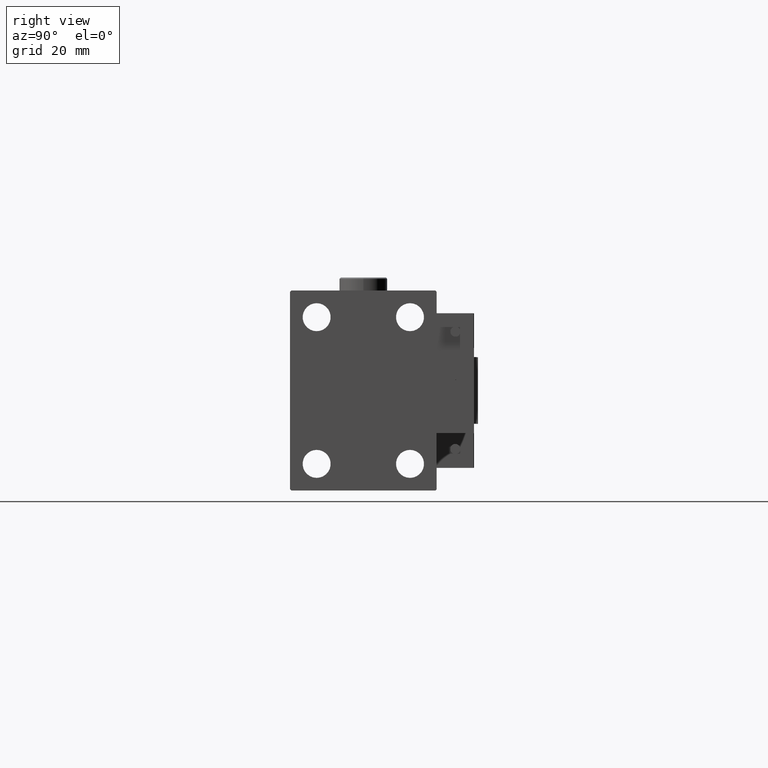
[diagram: clean part render]
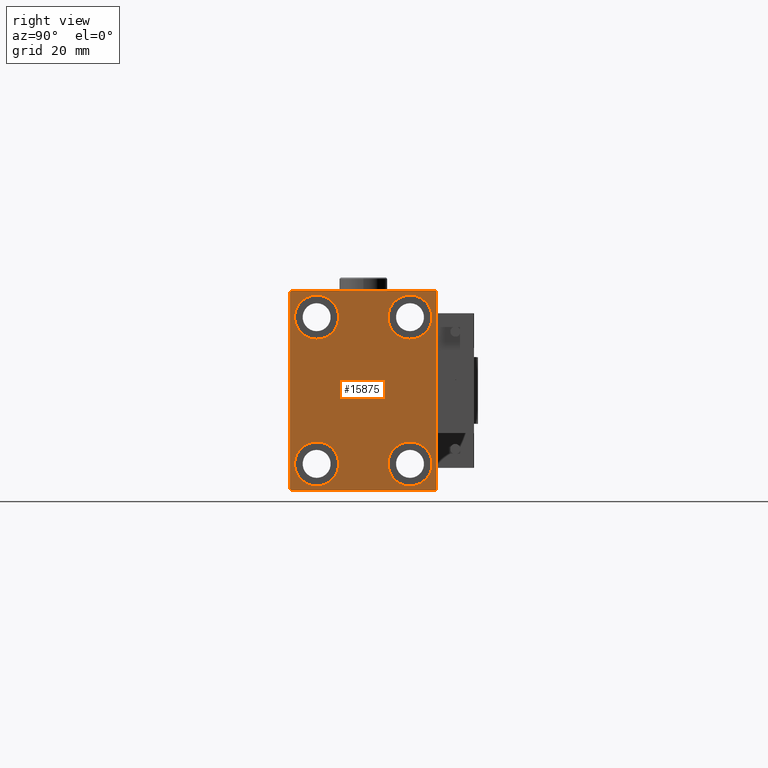
[diagram: same view with one face highlighted and labeled with its STEP entity id]
A machine part, right view. The second image highlights one B-rep face of the part: STEP entity #15875.
In plain terms, the highlighted planar face has unit normal (1, 0, 0).
Its self-contained STEP definition (entity closure, byte-faithful):
#63 = LINE ( 'NONE', #19111, #14748 ) ;
#866 = VERTEX_POINT ( 'NONE', #51205 ) ;
#1067 = LINE ( 'NONE', #8891, #31613 ) ;
#1582 = CARTESIAN_POINT ( 'NONE',  ( 175.0000000000000000, 27.49999999999999645, 37.00000000000001421 ) ) ;
#1773 = AXIS2_PLACEMENT_3D ( 'NONE', #26254, #6455, #42157 ) ;
#2330 = ORIENTED_EDGE ( 'NONE', *, *, #20909, .T. ) ;
#2524 = LINE ( 'NONE', #50745, #46623 ) ;
#2953 = VECTOR ( 'NONE', #50575, 1000.000000000000114 ) ;
#3126 = CARTESIAN_POINT ( 'NONE',  ( 175.0000000000000000, 17.49999999999999645, -19.25000000000000355 ) ) ;
#3712 = VERTEX_POINT ( 'NONE', #29356 ) ;
#4596 = EDGE_LOOP ( 'NONE', ( #49215, #36755, #50250, #50752, #22055, #10293, #45800, #13690 ) ) ;
#5052 = CARTESIAN_POINT ( 'NONE',  ( 175.0000000000000000, 17.49999999999999645, -35.75000000000000711 ) ) ;
#5454 = DIRECTION ( 'NONE',  ( 0.000000000000000000, 0.000000000000000000, 1.000000000000000000 ) ) ;
#5770 = LINE ( 'NONE', #9939, #24987 ) ;
#5958 = DIRECTION ( 'NONE',  ( -1.000000000000000000, -0.000000000000000000, -0.000000000000000000 ) ) ;
#6219 = FACE_OUTER_BOUND ( 'NONE', #4596, .T. ) ;
#6230 = CARTESIAN_POINT ( 'NONE',  ( 175.0000000000000000, -17.49999999999999645, 27.49999999999999645 ) ) ;
#6433 = AXIS2_PLACEMENT_3D ( 'NONE', #6230, #22109, #5454 ) ;
#6455 = DIRECTION ( 'NONE',  ( -1.000000000000000000, -0.000000000000000000, -0.000000000000000000 ) ) ;
#6990 = EDGE_CURVE ( 'NONE', #38626, #44199, #16474, .T. ) ;
#6992 = CARTESIAN_POINT ( 'NONE',  ( 175.0000000000000000, 27.00000000000003197, -37.50000000000000000 ) ) ;
#7735 = EDGE_CURVE ( 'NONE', #3712, #46972, #63, .T. ) ;
#8891 = CARTESIAN_POINT ( 'NONE',  ( 175.0000000000000000, -32.25000000000000000, 32.25000000000000000 ) ) ;
#9305 = EDGE_CURVE ( 'NONE', #866, #50211, #21383, .T. ) ;
#9608 = CARTESIAN_POINT ( 'NONE',  ( 175.0000000000000000, -17.50000000000000355, -27.50000000000000355 ) ) ;
#9939 = CARTESIAN_POINT ( 'NONE',  ( 175.0000000000000000, 27.49999999999999645, 37.50000000000000711 ) ) ;
#10293 = ORIENTED_EDGE ( 'NONE', *, *, #50711, .T. ) ;
#10589 = DIRECTION ( 'NONE',  ( -1.000000000000000000, -0.000000000000000000, -0.000000000000000000 ) ) ;
#11390 = EDGE_CURVE ( 'NONE', #15247, #36127, #49778, .T. ) ;
#12240 = VERTEX_POINT ( 'NONE', #38521 ) ;
#12964 = VECTOR ( 'NONE', #46940, 1000.000000000000000 ) ;
#13301 = DIRECTION ( 'NONE',  ( -1.000000000000000000, -0.000000000000000000, -0.000000000000000000 ) ) ;
#13464 = CARTESIAN_POINT ( 'NONE',  ( 175.0000000000000000, 17.50000000000000355, 27.49999999999999645 ) ) ;
#13690 = ORIENTED_EDGE ( 'NONE', *, *, #50806, .T. ) ;
#14226 = VECTOR ( 'NONE', #37960, 1000.000000000000000 ) ;
#14281 = VERTEX_POINT ( 'NONE', #6992 ) ;
#14748 = VECTOR ( 'NONE', #50638, 1000.000000000000000 ) ;
#15022 = EDGE_CURVE ( 'NONE', #45225, #38626, #2524, .T. ) ;
#15247 = VERTEX_POINT ( 'NONE', #5052 ) ;
#15684 = ORIENTED_EDGE ( 'NONE', *, *, #47698, .T. ) ;
#15875 = ADVANCED_FACE ( 'NONE', ( #42175, #30182, #38523, #49742, #6219 ), #29921, .T. ) ;
#16015 = CIRCLE ( 'NONE', #40030, 8.249999999999992895 ) ;
#16140 = ORIENTED_EDGE ( 'NONE', *, *, #25606, .T. ) ;
#16234 = CARTESIAN_POINT ( 'NONE',  ( 175.0000000000000000, -17.50000000000000355, -27.50000000000000355 ) ) ;
#16388 = EDGE_CURVE ( 'NONE', #35202, #17482, #5770, .T. ) ;
#16474 = LINE ( 'NONE', #44097, #28142 ) ;
#16717 = ORIENTED_EDGE ( 'NONE', *, *, #9305, .T. ) ;
#17482 = VERTEX_POINT ( 'NONE', #45838 ) ;
#17484 = DIRECTION ( 'NONE',  ( 0.000000000000000000, -0.7071067811865474617, -0.7071067811865474617 ) ) ;
#17635 = DIRECTION ( 'NONE',  ( 0.000000000000000000, 0.000000000000000000, 1.000000000000000000 ) ) ;
#17957 = CARTESIAN_POINT ( 'NONE',  ( 175.0000000000000000, 0.000000000000000000, 0.000000000000000000 ) ) ;
#18008 = CARTESIAN_POINT ( 'NONE',  ( 175.0000000000000000, 32.25000000000001421, -32.25000000000001421 ) ) ;
#18528 = LINE ( 'NONE', #18008, #2953 ) ;
#18977 = EDGE_CURVE ( 'NONE', #50211, #866, #35900, .T. ) ;
#19111 = CARTESIAN_POINT ( 'NONE',  ( 175.0000000000000000, 27.50000000000000355, -37.50000000000000000 ) ) ;
#19720 = EDGE_LOOP ( 'NONE', ( #44226, #15684 ) ) ;
#20088 = EDGE_CURVE ( 'NONE', #24009, #28759, #21793, .T. ) ;
#20196 = CARTESIAN_POINT ( 'NONE',  ( 175.0000000000000000, 17.50000000000000355, 27.49999999999999645 ) ) ;
#20570 = ORIENTED_EDGE ( 'NONE', *, *, #33496, .T. ) ;
#20620 = ORIENTED_EDGE ( 'NONE', *, *, #18977, .T. ) ;
#20909 = EDGE_CURVE ( 'NONE', #48340, #12240, #16015, .T. ) ;
#21383 = CIRCLE ( 'NONE', #6433, 8.249999999999992895 ) ;
#21793 = CIRCLE ( 'NONE', #34249, 8.250000000000000000 ) ;
#22055 = ORIENTED_EDGE ( 'NONE', *, *, #36499, .T. ) ;
#22061 = CARTESIAN_POINT ( 'NONE',  ( 175.0000000000000000, -27.50000000000000355, -37.50000000000000000 ) ) ;
#22109 = DIRECTION ( 'NONE',  ( -1.000000000000000000, -0.000000000000000000, -0.000000000000000000 ) ) ;
#22877 = DIRECTION ( 'NONE',  ( 0.000000000000000000, 0.000000000000000000, -1.000000000000000000 ) ) ;
#23058 = EDGE_LOOP ( 'NONE', ( #16140, #2330 ) ) ;
#24009 = VERTEX_POINT ( 'NONE', #36560 ) ;
#24350 = DIRECTION ( 'NONE',  ( -1.000000000000000000, -0.000000000000000000, -0.000000000000000000 ) ) ;
#24531 = DIRECTION ( 'NONE',  ( -0.000000000000000000, 0.7071067811865672237, -0.7071067811865279218 ) ) ;
#24987 = VECTOR ( 'NONE', #25573, 1000.000000000000000 ) ;
#25573 = DIRECTION ( 'NONE',  ( 0.000000000000000000, -1.000000000000000000, -1.261617073437677999E-16 ) ) ;
#25606 = EDGE_CURVE ( 'NONE', #12240, #48340, #31978, .T. ) ;
#25818 = DIRECTION ( 'NONE',  ( -1.000000000000000000, -0.000000000000000000, -0.000000000000000000 ) ) ;
#25973 = DIRECTION ( 'NONE',  ( 0.000000000000000000, 0.000000000000000000, 1.000000000000000000 ) ) ;
#26254 = CARTESIAN_POINT ( 'NONE',  ( 175.0000000000000000, -17.49999999999999645, 27.49999999999999645 ) ) ;
#26276 = DIRECTION ( 'NONE',  ( 1.000000000000000000, 0.000000000000000000, 0.000000000000000000 ) ) ;
#26340 = CARTESIAN_POINT ( 'NONE',  ( 175.0000000000000000, -27.50000000000000355, -37.00000000000000000 ) ) ;
#27105 = CIRCLE ( 'NONE', #34575, 8.250000000000000000 ) ;
#27287 = LINE ( 'NONE', #22061, #14226 ) ;
#27327 = AXIS2_PLACEMENT_3D ( 'NONE', #30131, #10589, #25973 ) ;
#28142 = VECTOR ( 'NONE', #24531, 1000.000000000000000 ) ;
#28759 = VERTEX_POINT ( 'NONE', #40279 ) ;
#28960 = DIRECTION ( 'NONE',  ( 0.000000000000000000, 0.000000000000000000, 1.000000000000000000 ) ) ;
#29356 = CARTESIAN_POINT ( 'NONE',  ( 175.0000000000000000, 27.50000000000000355, -37.00000000000002842 ) ) ;
#29701 = DIRECTION ( 'NONE',  ( 0.000000000000000000, 0.000000000000000000, 1.000000000000000000 ) ) ;
#29921 = PLANE ( 'NONE',  #49104 ) ;
#29950 = CARTESIAN_POINT ( 'NONE',  ( 175.0000000000000000, 17.49999999999999645, -27.50000000000000355 ) ) ;
#30131 = CARTESIAN_POINT ( 'NONE',  ( 175.0000000000000000, 17.49999999999999645, -27.50000000000000355 ) ) ;
#30182 = FACE_BOUND ( 'NONE', #49357, .T. ) ;
#30919 = EDGE_CURVE ( 'NONE', #17482, #45225, #1067, .T. ) ;
#31191 = DIRECTION ( 'NONE',  ( 0.000000000000000000, 0.000000000000000000, -1.000000000000000000 ) ) ;
#31613 = VECTOR ( 'NONE', #17484, 1000.000000000000114 ) ;
#31978 = CIRCLE ( 'NONE', #51138, 8.249999999999992895 ) ;
#32523 = CARTESIAN_POINT ( 'NONE',  ( 175.0000000000000000, -26.99999999999997513, -37.50000000000000000 ) ) ;
#33496 = EDGE_CURVE ( 'NONE', #36127, #15247, #38354, .T. ) ;
#33588 = DIRECTION ( 'NONE',  ( 0.000000000000000000, 0.000000000000000000, 1.000000000000000000 ) ) ;
#34249 = AXIS2_PLACEMENT_3D ( 'NONE', #9608, #5958, #33588 ) ;
#34575 = AXIS2_PLACEMENT_3D ( 'NONE', #16234, #25818, #28960 ) ;
#35202 = VERTEX_POINT ( 'NONE', #43493 ) ;
#35900 = CIRCLE ( 'NONE', #1773, 8.249999999999992895 ) ;
#36127 = VERTEX_POINT ( 'NONE', #3126 ) ;
#36333 = DIRECTION ( 'NONE',  ( 0.000000000000000000, 0.000000000000000000, 1.000000000000000000 ) ) ;
#36499 = EDGE_CURVE ( 'NONE', #44199, #14281, #27287, .T. ) ;
#36560 = CARTESIAN_POINT ( 'NONE',  ( 175.0000000000000000, -17.50000000000000355, -35.75000000000000711 ) ) ;
#36755 = ORIENTED_EDGE ( 'NONE', *, *, #30919, .T. ) ;
#37960 = DIRECTION ( 'NONE',  ( 0.000000000000000000, 1.000000000000000000, 0.000000000000000000 ) ) ;
#38181 = DIRECTION ( 'NONE',  ( -1.000000000000000000, -0.000000000000000000, -0.000000000000000000 ) ) ;
#38354 = CIRCLE ( 'NONE', #41712, 8.250000000000000000 ) ;
#38521 = CARTESIAN_POINT ( 'NONE',  ( 175.0000000000000000, 17.50000000000000355, 19.25000000000000000 ) ) ;
#38523 = FACE_BOUND ( 'NONE', #23058, .T. ) ;
#38626 = VERTEX_POINT ( 'NONE', #26340 ) ;
#40030 = AXIS2_PLACEMENT_3D ( 'NONE', #13464, #38181, #17635 ) ;
#40257 = CARTESIAN_POINT ( 'NONE',  ( 175.0000000000000000, -17.49999999999999645, 19.25000000000000000 ) ) ;
#40279 = CARTESIAN_POINT ( 'NONE',  ( 175.0000000000000000, -17.50000000000000355, -19.25000000000000355 ) ) ;
#41712 = AXIS2_PLACEMENT_3D ( 'NONE', #29950, #13301, #29701 ) ;
#42157 = DIRECTION ( 'NONE',  ( 0.000000000000000000, 0.000000000000000000, 1.000000000000000000 ) ) ;
#42175 = FACE_BOUND ( 'NONE', #44919, .T. ) ;
#42303 = CARTESIAN_POINT ( 'NONE',  ( 175.0000000000000000, 17.50000000000000355, 35.74999999999999289 ) ) ;
#42387 = CARTESIAN_POINT ( 'NONE',  ( 175.0000000000000000, -27.50000000000000355, 37.00000000000000000 ) ) ;
#43022 = LINE ( 'NONE', #47449, #12964 ) ;
#43153 = ORIENTED_EDGE ( 'NONE', *, *, #11390, .T. ) ;
#43493 = CARTESIAN_POINT ( 'NONE',  ( 175.0000000000000000, 26.99999999999999645, 37.50000000000000711 ) ) ;
#44097 = CARTESIAN_POINT ( 'NONE',  ( 175.0000000000000000, -32.24999999999923972, -32.25000000000103029 ) ) ;
#44199 = VERTEX_POINT ( 'NONE', #32523 ) ;
#44226 = ORIENTED_EDGE ( 'NONE', *, *, #20088, .T. ) ;
#44919 = EDGE_LOOP ( 'NONE', ( #43153, #20570 ) ) ;
#45225 = VERTEX_POINT ( 'NONE', #42387 ) ;
#45800 = ORIENTED_EDGE ( 'NONE', *, *, #7735, .T. ) ;
#45838 = CARTESIAN_POINT ( 'NONE',  ( 175.0000000000000000, -27.00000000000000355, 37.50000000000000000 ) ) ;
#46623 = VECTOR ( 'NONE', #31191, 1000.000000000000000 ) ;
#46940 = DIRECTION ( 'NONE',  ( -0.000000000000000000, -0.7071067811865524577, 0.7071067811865426878 ) ) ;
#46972 = VERTEX_POINT ( 'NONE', #1582 ) ;
#47449 = CARTESIAN_POINT ( 'NONE',  ( 175.0000000000000000, 32.24999999999981526, 32.25000000000025580 ) ) ;
#47698 = EDGE_CURVE ( 'NONE', #28759, #24009, #27105, .T. ) ;
#48340 = VERTEX_POINT ( 'NONE', #42303 ) ;
#49104 = AXIS2_PLACEMENT_3D ( 'NONE', #17957, #26276, #22877 ) ;
#49215 = ORIENTED_EDGE ( 'NONE', *, *, #16388, .T. ) ;
#49357 = EDGE_LOOP ( 'NONE', ( #20620, #16717 ) ) ;
#49742 = FACE_BOUND ( 'NONE', #19720, .T. ) ;
#49778 = CIRCLE ( 'NONE', #27327, 8.250000000000000000 ) ;
#50211 = VERTEX_POINT ( 'NONE', #40257 ) ;
#50250 = ORIENTED_EDGE ( 'NONE', *, *, #15022, .T. ) ;
#50575 = DIRECTION ( 'NONE',  ( -0.000000000000000000, 0.7071067811865474617, 0.7071067811865474617 ) ) ;
#50638 = DIRECTION ( 'NONE',  ( 0.000000000000000000, -9.251858538542970348E-17, 1.000000000000000000 ) ) ;
#50711 = EDGE_CURVE ( 'NONE', #14281, #3712, #18528, .T. ) ;
#50745 = CARTESIAN_POINT ( 'NONE',  ( 175.0000000000000000, -27.50000000000000355, 37.50000000000000000 ) ) ;
#50752 = ORIENTED_EDGE ( 'NONE', *, *, #6990, .T. ) ;
#50806 = EDGE_CURVE ( 'NONE', #46972, #35202, #43022, .T. ) ;
#51138 = AXIS2_PLACEMENT_3D ( 'NONE', #20196, #24350, #36333 ) ;
#51205 = CARTESIAN_POINT ( 'NONE',  ( 175.0000000000000000, -17.49999999999999645, 35.74999999999999289 ) ) ;